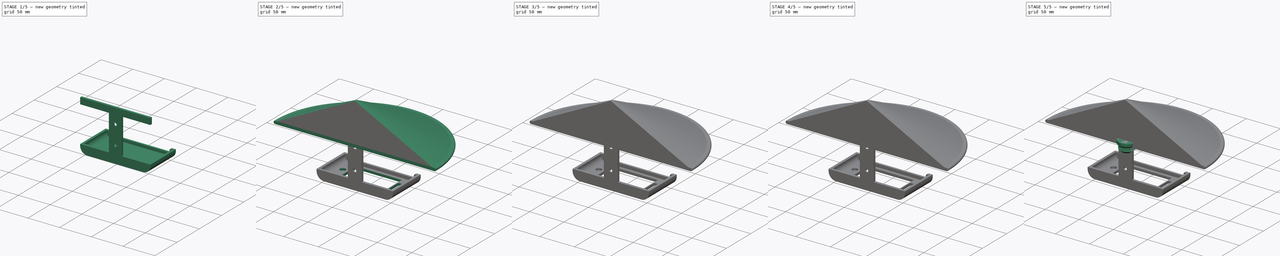
[diagram: build sequence overview — one tinted view per stage of 5, left to right]
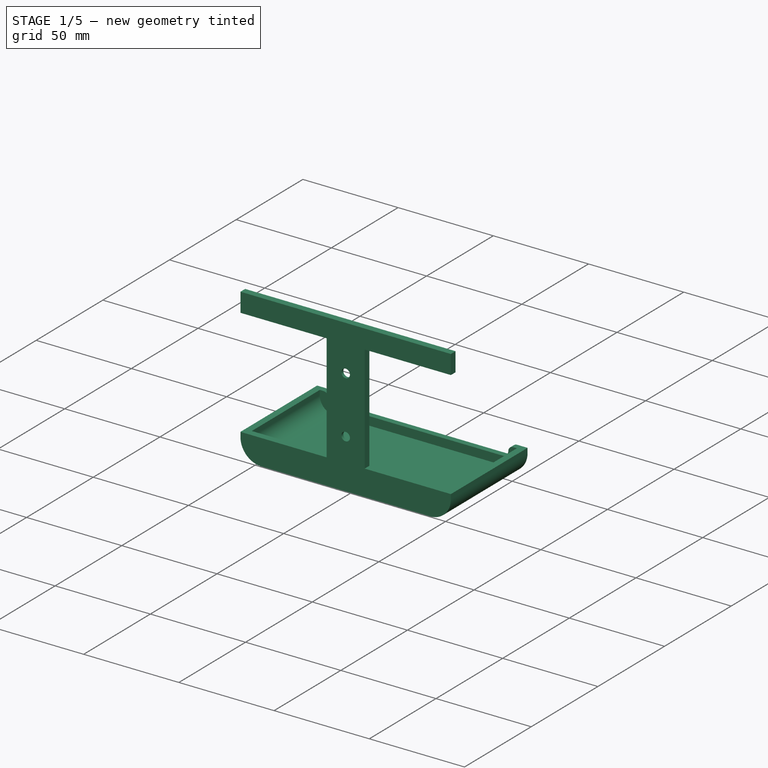
[diagram: stage 1 of 5 — iso view after this stage's code; geometry added in this stage tinted green]
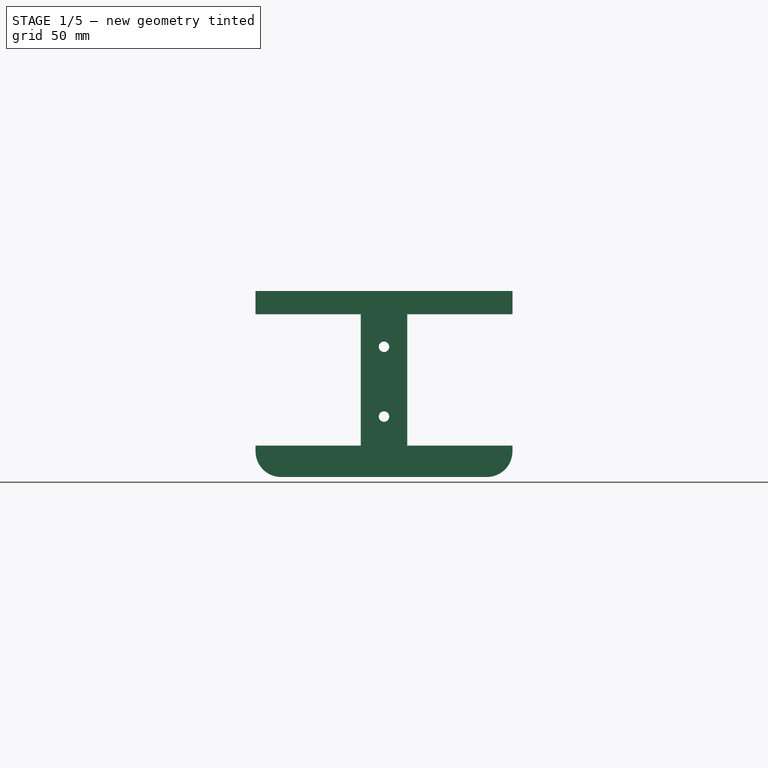
[diagram: stage 1 of 5 — front view after this stage's code; geometry added in this stage tinted green]
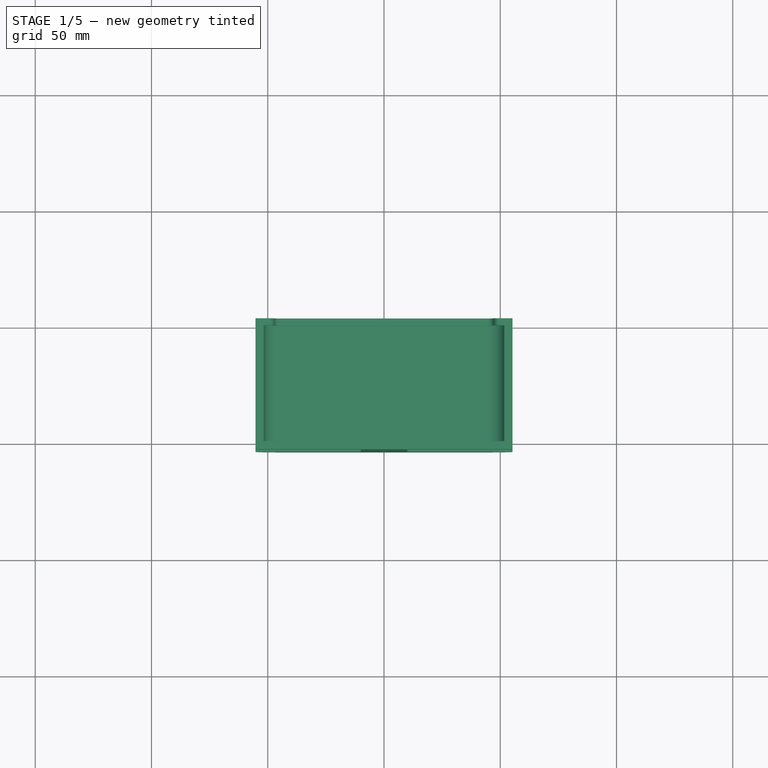
[diagram: stage 1 of 5 — top view after this stage's code; geometry added in this stage tinted green]
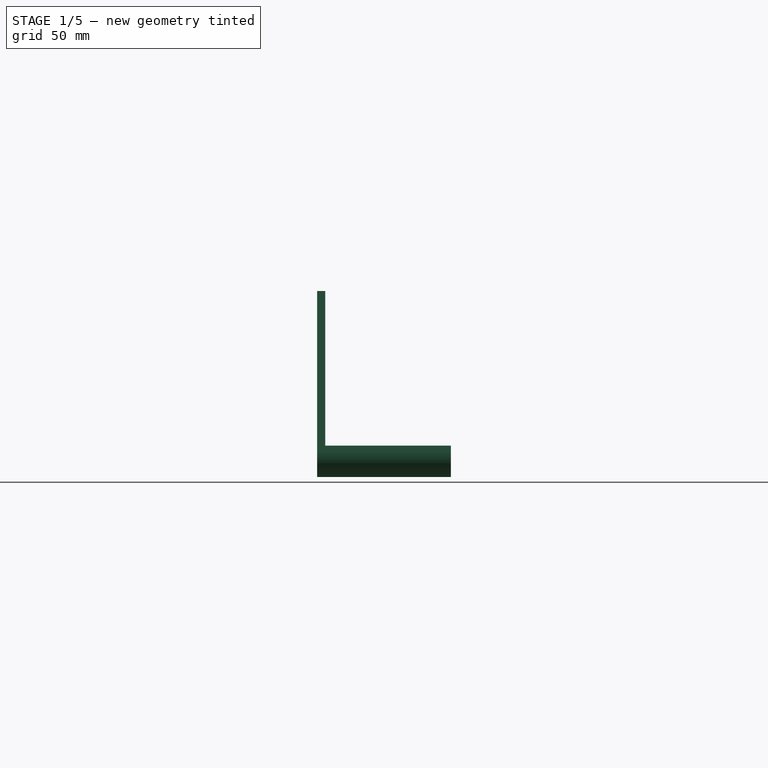
[diagram: stage 1 of 5 — right view after this stage's code; geometry added in this stage tinted green]
FCSTD DOCUMENT  (FreeCAD 1.1RUnknown)
Label: Weather_Protection_Hood
License: All rights reserved
LicenseURL: https://en.wikipedia.org/wiki/All_rights_reserved
objects: Sketcher::SketchObject×13, PartDesign::Pad×10, App::Point×4, PartDesign::Body×4, PartDesign::Fillet×4, PartDesign::Revolution×2, PartDesign::Pocket×2, PartDesign::Chamfer×2, PartDesign::Hole×1, PartDesign::Boolean×1
note: 95 computed .brp shape members not serialized (recipe doc carries the construction recipe); baked Part::Feature solids carry a one-line shape summary decoded from their .brp

FEATURE [PartDesign::Body] Body013  label="Hat"
  AllowCompound = false
  Group = -> [Sketch072,Pad054,Revolution003,Sketch073,Pad055,Sketch074,Pocket034,Chamfer006,Sketch079,Pad058,Fillet032,Sketch080,Pad059,Fillet033,Fillet034,Sketch081,Pad060,Fillet035]
  Origin = -> Origin013
  Tip = -> Fillet035
FEATURE [App::Point] Origin023
  Role = Origin
FEATURE [Sketcher::SketchObject] Sketch067
  ArcFitTolerance = 1e-06
  AttachmentSupport = -> [XZ_Plane012]
  ExternalTypes = [0]
  FullyConstrained = true
  MakeInternals = false
  MapMode = 5
  Placement = pos=(0,0,0) rot=(1,0,0;1.5708rad)
  _ExternalGeoVersion = 0
  sketch-geometry (16):
    g0: LineSegment StartX=55.25 StartY=24 StartZ=0 EndX=-55.25 EndY=24 EndZ=0
    g1: LineSegment StartX=-55.25 StartY=24 StartZ=0 EndX=-55.25 EndY=14 EndZ=0
    g2: LineSegment StartX=-55.25 StartY=14 StartZ=0 EndX=-10 EndY=14 EndZ=0
    g3: LineSegment StartX=-10 StartY=14 StartZ=0 EndX=-10 EndY=-42.5 EndZ=0
    g4: LineSegment StartX=-10 StartY=-42.5 StartZ=0 EndX=-55.25 EndY=-42.5 EndZ=0
    g5: LineSegment StartX=-55.25 StartY=-42.5 StartZ=0 EndX=-55.25 EndY=-45 EndZ=0
    g6: LineSegment StartX=55.25 StartY=24 StartZ=0 EndX=55.25 EndY=14 EndZ=0
    g7: LineSegment StartX=55.25 StartY=14 StartZ=0 EndX=10 EndY=14 EndZ=0
    g8: LineSegment StartX=10 StartY=14 StartZ=0 EndX=10 EndY=-42.5 EndZ=0
    g9: LineSegment StartX=10 StartY=-42.5 StartZ=0 EndX=55.25 EndY=-42.5 EndZ=0
    g10: LineSegment StartX=55.25 StartY=-42.5 StartZ=0 EndX=55.25 EndY=-45 EndZ=0
    g11: ArcOfCircle CenterX=44.25 CenterY=-45 CenterZ=0 NormalX=0 NormalY=0 NormalZ=1 AngleXU=0 Radius=11 StartAngle=4.71239 EndAngle=6.28319
    g12: ArcOfCircle CenterX=-44.25 CenterY=-45 CenterZ=0 NormalX=0 NormalY=0 NormalZ=1 AngleXU=0 Radius=11 StartAngle=3.14159 EndAngle=4.71239
    g13: LineSegment StartX=44.25 StartY=-56 StartZ=0 EndX=-44.25 EndY=-56 EndZ=0
    g14: Circle CenterX=0 CenterY=0 CenterZ=0 NormalX=0 NormalY=0 NormalZ=1 AngleXU=0 Radius=2.25
    g15: Circle CenterX=0 CenterY=-30 CenterZ=0 NormalX=0 NormalY=0 NormalZ=1 AngleXU=0 Radius=2.25
  constraints (47):
    c: Horizontal(g0)
    c: Coincident(g0,g1)
    c: Vertical(g1)
    c: Coincident(g1,g2)
    c: Horizontal(g2)
    c: Coincident(g2,g3)
    c: Vertical(g3)
    c: Coincident(g3,g4)
    c: Horizontal(g4)
    c: Coincident(g4,g5)
    c: Vertical(g5)
    c: Coincident(g0,g6)
    c: Vertical(g6)
    c: Coincident(g6,g7)
    c: Horizontal(g7)
    c: Coincident(g7,g8)
    c: Vertical(g8)
    c: Coincident(g8,g9)
    c: Horizontal(g9)
    c: Coincident(g9,g10)
    c: Vertical(g10)
    c: Coincident(g11,g10)
    c: Coincident(g12,g5)
    c: Coincident(g13,g11)
    c: Coincident(g13,g12)
    c: Horizontal(g13)
    c: Symmetric(g7,g2,g-2)
    c: Distance(g3,g8) = 20
    c: Distance(g13,g0) = 80
    c: Horizontal(g10,g11)
    c: Horizontal(g12,g5)
    c: Vertical(g12,g12)
    c: Vertical(g11,g11)
    c: Equal(g12,g11)
    c: Distance(g-1,g13) = 56
    c: Symmetric(g9,g4,g-2)
    c: Distance(g13,g4) = 13.5
    c: DistanceY(g1,g1) = 10
    c: Vertical(g1,g4)
    c: Vertical(g6,g9)
    c: DistanceX(g0,g0) = 110.5
    c: Coincident(g14,g-1)
    c: PointOnObject(g15,g-2)
    c: Equal(g15,g14)
    c: DistanceY(g15,g-1) = 30
    c: Diameter(g14) = 4.5
    c: Radius(g12) = 11
FEATURE [PartDesign::Pad] Pad050
  Direction = (0,-1,2e-16)
  Length = 3.5
  Length2 = 10
  Placement = pos=(0,0,0) rot=(1,0,0;1.5708rad)
  Profile = -> Sketch067
  ReferenceAxis = -> Sketch067 [N_Axis]
  Refine = true
  SideType = 0
  Suppressed = false
  Type = 0
  Type2 = 0
FEATURE [Sketcher::SketchObject] Sketch068
  ArcFitTolerance = 1e-06
  AttachmentSupport = -> [Pad050]
  ExternalTypes = [0]
  FullyConstrained = true
  MakeInternals = false
  MapMode = 5
  Placement = pos=(0,-3.3e-15,0) rot=(-1,0,0;1.5708rad)
  _ExternalGeoVersion = 0
  sketch-geometry (12):
    g0: LineSegment StartX=-55.25 StartY=45 StartZ=0 EndX=-55.25 EndY=42.5 EndZ=0
    g1: LineSegment StartX=-44.25 StartY=56 StartZ=0 EndX=44.25 EndY=56 EndZ=0
    g2: LineSegment StartX=-44.25 StartY=52.5 StartZ=0 EndX=44.25 EndY=52.5 EndZ=0
    g3: LineSegment StartX=-55.25 StartY=42.5 StartZ=0 EndX=-51.75 EndY=42.5 EndZ=0
    g4: LineSegment StartX=55.25 StartY=45 StartZ=0 EndX=55.25 EndY=42.5 EndZ=0
    g5: LineSegment StartX=55.25 StartY=42.5 StartZ=0 EndX=51.75 EndY=42.5 EndZ=0
    g6: LineSegment StartX=51.75 StartY=42.5 StartZ=0 EndX=51.75 EndY=45 EndZ=0
    g7: LineSegment StartX=-51.75 StartY=42.5 StartZ=0 EndX=-51.75 EndY=45 EndZ=0
    g8: ArcOfCircle CenterX=-44.25 CenterY=45 CenterZ=0 NormalX=0 NormalY=0 NormalZ=1 AngleXU=0 Radius=7.5 StartAngle=1.5708 EndAngle=3.14159
    g9: ArcOfCircle CenterX=44.25 CenterY=45 CenterZ=0 NormalX=0 NormalY=0 NormalZ=1 AngleXU=0 Radius=7.5 StartAngle=0 EndAngle=1.5708
    g10: ArcOfCircle CenterX=44.25 CenterY=45 CenterZ=0 NormalX=0 NormalY=0 NormalZ=1 AngleXU=0 Radius=11 StartAngle=0 EndAngle=1.5708
    g11: ArcOfCircle CenterX=-44.25 CenterY=45 CenterZ=0 NormalX=0 NormalY=0 NormalZ=1 AngleXU=0 Radius=11 StartAngle=1.5708 EndAngle=3.14159
  constraints (37):
    c: Vertical(g0)
    c: Horizontal(g1)
    c: Coincident(g3,g0)
    c: Horizontal(g3)
    c: Vertical(g4)
    c: Coincident(g5,g4)
    c: Horizontal(g5)
    c: Coincident(g6,g5)
    c: Vertical(g6)
    c: Coincident(g7,g3)
    c: Vertical(g7)
    c: Coincident(g8,g7)
    c: Coincident(g8,g2)
    c: Coincident(g9,g2)
    c: Coincident(g9,g6)
    c: Coincident(g10,g9)
    c: Coincident(g10,g1)
    c: Coincident(g10,g4)
    c: Coincident(g11,g8)
    c: Coincident(g11,g0)
    c: Coincident(g11,g1)
    c: Vertical(g10,g2)
    c: Vertical(g1,g9)
    c: Horizontal(g6,g9)
    c: Horizontal(g4,g9)
    c: Horizontal(g7,g8)
    c: Horizontal(g0,g8)
    c: Vertical(g8,g2)
    c: Vertical(g1,g8)
    c: Radius(g11) = 11
    c: Radius(g8) = 7.5
    c: Distance(g1,g-1) = 56
    c: Equal(g8,g9)
    c: Horizontal(g5,g3)
    c: DistanceY(g4,g4) = 2.5
    c: Distance(g6,g7) = 103.5
    c: Symmetric(g2,g2,g-2)
FEATURE [PartDesign::Pad] Pad051
  BaseFeature = -> Pad050
  Direction = (0,1,2e-16)
  Length = 51
  Length2 = 10
  Placement = pos=(0,0,0) rot=(1,0,0;1.5708rad)
  Profile = -> Sketch068
  ReferenceAxis = -> Sketch068 [N_Axis]
  Refine = true
  SideType = 0
  Suppressed = false
  Type = 0
  Type2 = 0
FEATURE [Sketcher::SketchObject] Sketch069
  ArcFitTolerance = 1e-06
  AttachmentSupport = -> [Pad051]
  ExternalTypes = [0]
  FullyConstrained = true
  MakeInternals = false
  MapMode = 5
  Placement = pos=(0,51,0) rot=(-1,0,0;1.5708rad)
  _ExternalGeoVersion = 0
  sketch-geometry (12):
    g0: LineSegment StartX=-55.25 StartY=45 StartZ=0 EndX=-55.25 EndY=42.5 EndZ=0
    g1: LineSegment StartX=-44.25 StartY=56 StartZ=0 EndX=44.25 EndY=56 EndZ=0
    g2: LineSegment StartX=-44.25 StartY=48 StartZ=0 EndX=44.25 EndY=48 EndZ=0
    g3: LineSegment StartX=-55.25 StartY=42.5 StartZ=0 EndX=-49.75 EndY=42.5 EndZ=0
    g4: LineSegment StartX=55.25 StartY=45 StartZ=0 EndX=55.25 EndY=42.5 EndZ=0
    g5: LineSegment StartX=55.25 StartY=42.5 StartZ=0 EndX=49.75 EndY=42.5 EndZ=0
    g6: ArcOfCircle CenterX=-44.25 CenterY=45 CenterZ=0 NormalX=0 NormalY=0 NormalZ=1 AngleXU=0 Radius=3 StartAngle=1.5708 EndAngle=3.14159
    g7: ArcOfCircle CenterX=44.25 CenterY=45 CenterZ=0 NormalX=0 NormalY=0 NormalZ=1 AngleXU=0 Radius=3 StartAngle=0 EndAngle=1.5708
    g8: ArcOfCircle CenterX=44.25 CenterY=45 CenterZ=0 NormalX=0 NormalY=0 NormalZ=1 AngleXU=0 Radius=11 StartAngle=0 EndAngle=1.5708
    g9: ArcOfCircle CenterX=-44.25 CenterY=45 CenterZ=0 NormalX=0 NormalY=0 NormalZ=1 AngleXU=0 Radius=11 StartAngle=1.5708 EndAngle=3.14159
    g10: ArcOfCircle CenterX=49.75 CenterY=45 CenterZ=0 NormalX=0 NormalY=0 NormalZ=1 AngleXU=0 Radius=2.5 StartAngle=3.14159 EndAngle=4.71239
    g11: ArcOfCircle CenterX=-49.75 CenterY=45 CenterZ=0 NormalX=0 NormalY=0 NormalZ=1 AngleXU=0 Radius=2.5 StartAngle=4.71239 EndAngle=6.28319
  constraints (39):
    c: Vertical(g0)
    c: Horizontal(g2)
    c: Coincident(g3,g0)
    c: Horizontal(g3)
    c: Vertical(g4)
    c: Coincident(g5,g4)
    c: Horizontal(g5)
    c: Coincident(g6,g2)
    c: Coincident(g7,g2)
    c: Coincident(g8,g7)
    c: Coincident(g8,g1)
    c: Coincident(g8,g4)
    c: Coincident(g9,g6)
    c: Coincident(g9,g0)
    c: Coincident(g9,g1)
    c: Vertical(g8,g2)
    c: Vertical(g1,g7)
    c: Horizontal(g7,g7)
    c: Horizontal(g4,g7)
    c: Horizontal(g6,g6)
    c: Horizontal(g0,g6)
    c: Vertical(g6,g2)
    c: Vertical(g1,g6)
    c: Radius(g9) = 11
    c: Radius(g6) = 3
    c: Distance(g1,g-1) = 56
    c: Equal(g6,g7)
    c: Horizontal(g5,g3)
    c: DistanceY(g4,g4) = 2.5
    c: Coincident(g10,g7)
    c: Coincident(g10,g5)
    c: Coincident(g11,g6)
    c: Coincident(g11,g3)
    c: Horizontal(g11,g6)
    c: Vertical(g11,g3)
    c: Horizontal(g7,g10)
    c: Vertical(g5,g10)
    c: Symmetric(g1,g1,g-2)
    c: Distance(g4,g0) = 110.5
FEATURE [PartDesign::Pad] Pad052
  BaseFeature = -> Pad051
  Direction = (0,1,2e-16)
  Length = 3
  Length2 = 10
  Placement = pos=(0,0,0) rot=(1,0,0;1.5708rad)
  Profile = -> Sketch069
  ReferenceAxis = -> Sketch069 [N_Axis]
  Refine = true
  SideType = 0
  Suppressed = false
  Type = 0
  Type2 = 0
FEATURE [PartDesign::Chamfer] Chamfer005
  Angle = 45
  Base = -> Pad052 [Edge22,Edge23]
  BaseFeature = -> Pad052
  ChamferType = 0
  FlipDirection = false
  Placement = pos=(0,0,0) rot=(1,0,0;1.5708rad)
  Refine = true
  Size = 2
  Size2 = 1
  SupportTransform = false
  Suppressed = false
  UseAllEdges = false
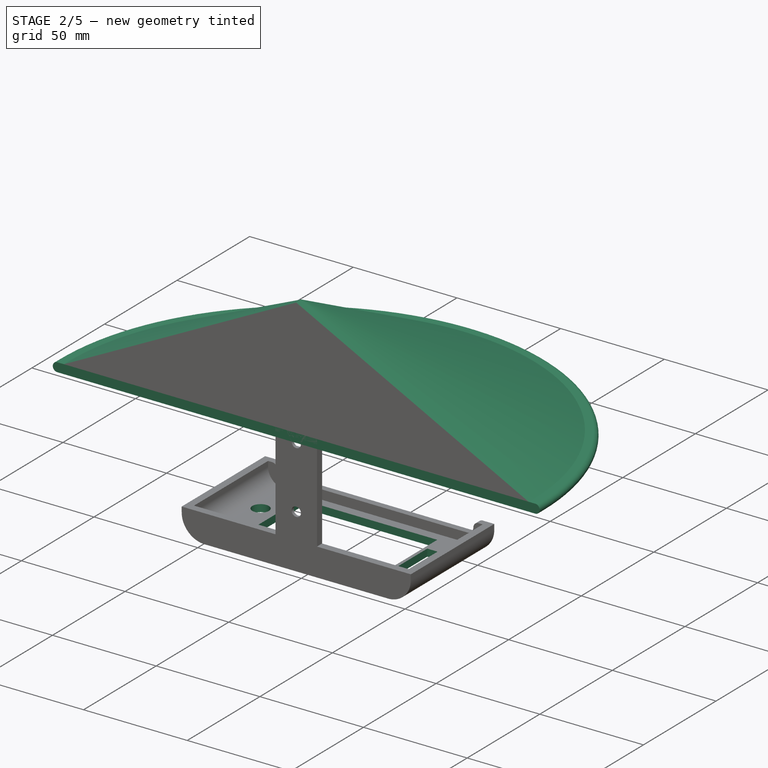
[diagram: stage 2 of 5 — iso view after this stage's code; geometry added in this stage tinted green]
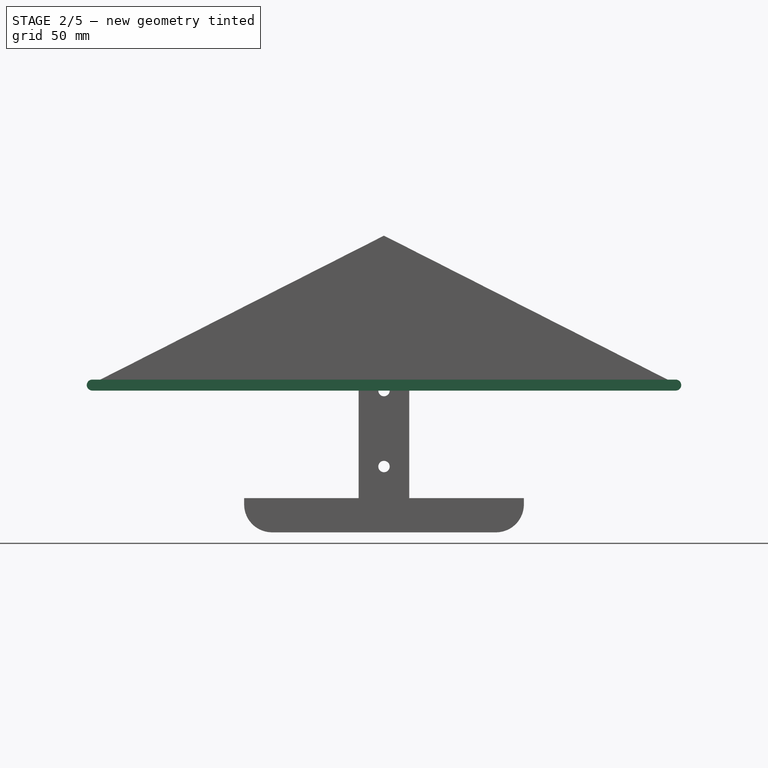
[diagram: stage 2 of 5 — front view after this stage's code; geometry added in this stage tinted green]
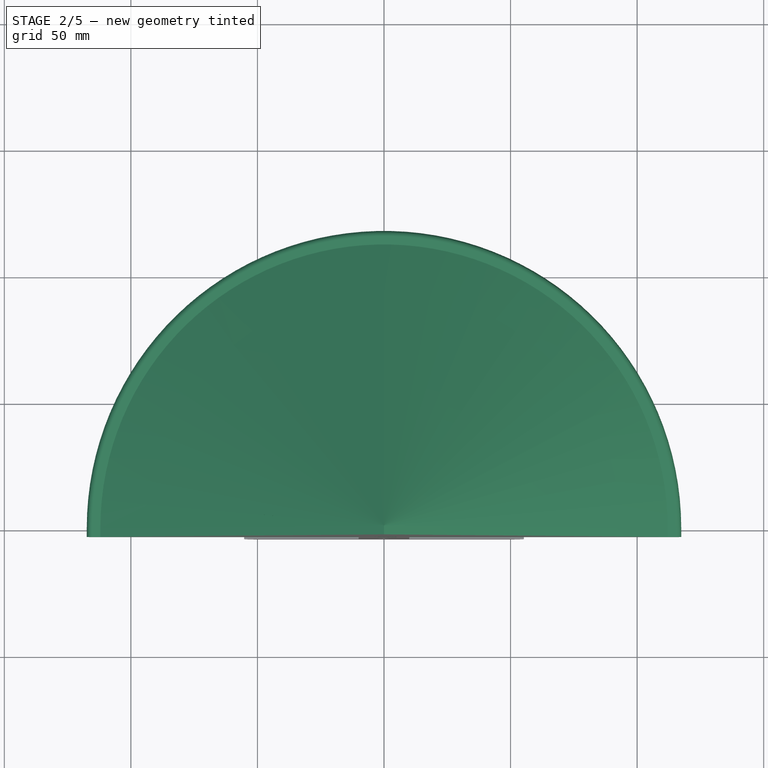
[diagram: stage 2 of 5 — top view after this stage's code; geometry added in this stage tinted green]
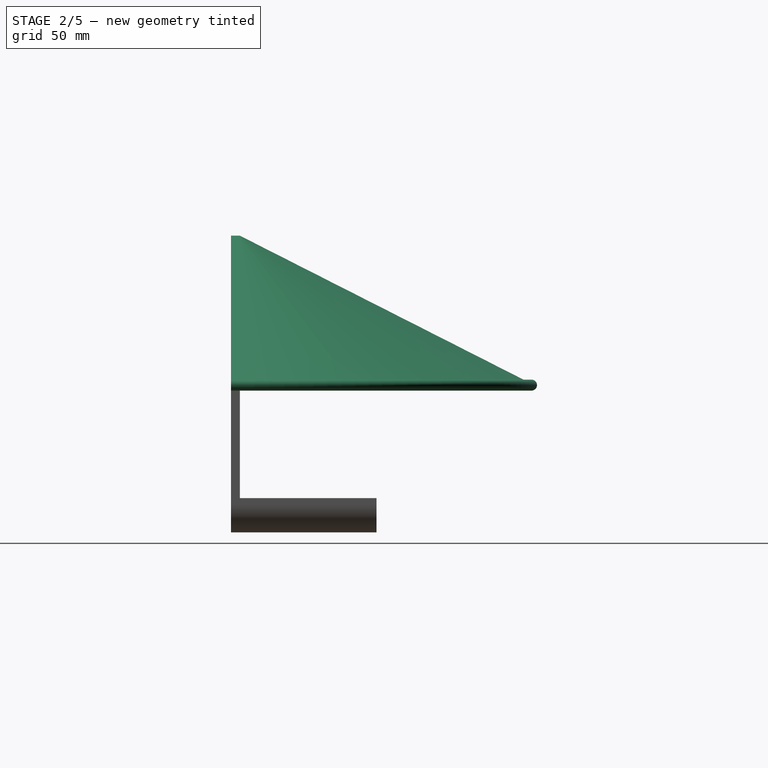
[diagram: stage 2 of 5 — right view after this stage's code; geometry added in this stage tinted green]
FEATURE [PartDesign::Body] Body  label="Bolt"
  AllowCompound = true
  Group = -> [Revolution004,Sketch075,Boolean]
  Origin = -> Origin
  Placement = pos=(0,23.5,19.4) rot=(0,0,1;0rad)
  Tip = -> Boolean
FEATURE [App::Point] Origin022
  Role = Origin
FEATURE [Sketcher::SketchObject] Sketch072
  ArcFitTolerance = 1e-06
  AttachmentSupport = -> [XZ_Plane013]
  ExternalTypes = [0]
  FullyConstrained = true
  MakeInternals = false
  MapMode = 5
  Placement = pos=(0,0,0) rot=(1,0,0;1.5708rad)
  _ExternalGeoVersion = 0
  sketch-geometry (10):
    g0: LineSegment StartX=-112.05 StartY=4.34 StartZ=0 EndX=0 EndY=61.2 EndZ=0
    g1: LineSegment StartX=0 StartY=61.2 StartZ=0 EndX=112.05 EndY=4.34 EndZ=0
    g2: ArcOfCircle CenterX=115.25 CenterY=2.17 CenterZ=0 NormalX=0 NormalY=0 NormalZ=1 AngleXU=0 Radius=2.17 StartAngle=4.71239 EndAngle=7.85398
    g3: LineSegment StartX=112.05 StartY=4.34 StartZ=0 EndX=115.25 EndY=4.34 EndZ=0
    g4: ArcOfCircle CenterX=-115.25 CenterY=2.17 CenterZ=0 NormalX=0 NormalY=0 NormalZ=1 AngleXU=0 Radius=2.17 StartAngle=1.5708 EndAngle=4.71239
    g5: LineSegment StartX=-115.25 StartY=4.34 StartZ=0 EndX=-112.05 EndY=4.34 EndZ=0
    g6: LineSegment StartX=0 StartY=57.2751 StartZ=0 EndX=-112.868 EndY=0 EndZ=0
    g7: LineSegment StartX=-115.25 StartY=0 StartZ=0 EndX=-112.868 EndY=0 EndZ=0
    g8: LineSegment StartX=-112.868 StartY=0 StartZ=0 EndX=115.25 EndY=0 EndZ=0
    g9: LineSegment StartX=0 StartY=57.2751 StartZ=0 EndX=0 EndY=61.2 EndZ=0
  constraints (30):
    c: Coincident(g0,g1)
    c: Radius(g2) = 2.17
    c: Vertical(g2,g2)
    c: Vertical(g2,g2)
    c: Coincident(g3,g1)
    c: Coincident(g3,g2)
    c: Horizontal(g3)
    c: Equal(g2,g4)
    c: Vertical(g4,g4)
    c: Vertical(g4,g4)
    c: Coincident(g5,g4)
    c: Coincident(g5,g0)
    c: Horizontal(g5)
    c: Equal(g5,g3)
    c: DistanceX(g3,g3) = 3.2
    c: DistanceX(g4,g2) = 230.5
    c: Symmetric(g2,g4,g-2)
    c: PointOnObject(g0,g-2)
    c: PointOnObject(g4,g-1)
    c: Parallel(g6,g0)
    c: Distance(g0,g6) = 3.5
    c: DistanceY(g-1,g0) = 61.2
    c: Coincident(g7,g4)
    c: Coincident(g7,g6)
    c: Coincident(g8,g6)
    c: Coincident(g8,g2)
    c: Coincident(g9,g6)
    c: Coincident(g9,g0)
    c: Horizontal(g7)
    c: Vertical(g9)
FEATURE [PartDesign::Pad] Pad054
  Direction = (0,-1,2e-16)
  Length = 3.5
  Length2 = 10
  Placement = pos=(0,0,0) rot=(1,0,0;1.5708rad)
  Profile = -> Sketch072 [Edge5,Edge2,Edge1,Edge10,Edge9,Edge8,Edge7,Edge6]
  ReferenceAxis = -> Sketch072 [N_Axis]
  Refine = true
  SideType = 0
  Suppressed = false
  Type = 0
  Type2 = 0
FEATURE [PartDesign::Revolution] Revolution003
  Angle = 180
  Angle2 = 60
  Axis = (0,2e-16,1)
  Base = (0,0,0)
  BaseFeature = -> Pad054
  FuseOrder = 1
  Placement = pos=(0,0,0) rot=(1,0,0;1.5708rad)
  Profile = -> Sketch072 [Edge3,Edge4,Edge2,Edge1,Edge10,Edge9]
  ReferenceAxis = -> Sketch072 [V_Axis]
  Refine = true
  Reversed = true
  Suppressed = false
  Type = 0
FEATURE [Sketcher::SketchObject] Sketch073
  ArcFitTolerance = 1e-06
  AttachmentSupport = -> [Revolution003]
  ExternalTypes = [0]
  FullyConstrained = true
  MakeInternals = false
  MapMode = 5
  Placement = pos=(0,3.7e-15,0) rot=(-1,0,0;1.5708rad)
  _ExternalGeoVersion = 0
  sketch-geometry (4):
    g0: LineSegment StartX=16 StartY=-23 StartZ=0 EndX=16 EndY=-20 EndZ=0
    g1: LineSegment StartX=16 StartY=-20 StartZ=0 EndX=-16 EndY=-20 EndZ=0
    g2: LineSegment StartX=-16 StartY=-20 StartZ=0 EndX=-16 EndY=-23 EndZ=0
    g3: LineSegment StartX=-16 StartY=-23 StartZ=0 EndX=16 EndY=-23 EndZ=0
  constraints (11):
    c: Coincident(g0,g1)
    c: Coincident(g1,g2)
    c: Coincident(g2,g3)
    c: Coincident(g3,g0)
    c: Vertical(g0)
    c: Vertical(g2)
    c: Horizontal(g1)
    c: Distance(g-1,g1) = 20
    c: DistanceY(g2,g2) = 3
    c: DistanceX(g3,g3) = 32
    c: Symmetric(g0,g2,g-2)
FEATURE [PartDesign::Pad] Pad055
  BaseFeature = -> Revolution003
  Direction = (0,1,2e-16)
  Length = 30
  Length2 = 10
  Placement = pos=(0,0,0) rot=(1,0,0;1.5708rad)
  Profile = -> Sketch073
  ReferenceAxis = -> Sketch073 [N_Axis]
  Refine = true
  SideType = 0
  Suppressed = false
  Type = 0
  Type2 = 0
FEATURE [Sketcher::SketchObject] Sketch070
  ArcFitTolerance = 1e-06
  AttachmentSupport = -> [Chamfer005]
  ExternalTypes = [0]
  FullyConstrained = true
  MakeInternals = false
  MapMode = 5
  Placement = pos=(0,-3e-16,-56) rot=(1,0,0;3.14159rad)
  _ExternalGeoVersion = 0
  sketch-geometry (9):
    g0: LineSegment StartX=-33 StartY=-4 StartZ=0 EndX=-33 EndY=-46.5 EndZ=0
    g1: LineSegment StartX=-33 StartY=-46.5 StartZ=0 EndX=33 EndY=-46.5 EndZ=0
    g2: LineSegment StartX=33 StartY=-46.5 StartZ=0 EndX=33 EndY=-4 EndZ=0
    g3: LineSegment StartX=33 StartY=-4 StartZ=0 EndX=-33 EndY=-4 EndZ=0
    g4: LineSegment StartX=34.5 StartY=-12.5 StartZ=0 EndX=34.5 EndY=-37.5 EndZ=0
    g5: LineSegment StartX=34.5 StartY=-37.5 StartZ=0 EndX=44.5 EndY=-37.5 EndZ=0
    g6: LineSegment StartX=44.5 StartY=-37.5 StartZ=0 EndX=44.5 EndY=-12.5 EndZ=0
    g7: LineSegment StartX=44.5 StartY=-12.5 StartZ=0 EndX=34.5 EndY=-12.5 EndZ=0
    g8: Circle CenterX=-41 CenterY=-30.5 CenterZ=0 NormalX=0 NormalY=0 NormalZ=1 AngleXU=0 Radius=4
  constraints (26):
    c: Coincident(g0,g1)
    c: Coincident(g1,g2)
    c: Coincident(g2,g3)
    c: Coincident(g3,g0)
    c: Vertical(g0)
    c: Vertical(g2)
    c: Horizontal(g3)
    c: Coincident(g4,g5)
    c: Coincident(g5,g6)
    c: Coincident(g6,g7)
    c: Coincident(g7,g4)
    c: Vertical(g4)
    c: Vertical(g6)
    c: Horizontal(g5)
    c: Horizontal(g7)
    c: DistanceY(g0,g0) = 42.5
    c: DistanceX(g3,g3) = 66
    c: Symmetric(g0,g1,g-2)
    c: DistanceY(g6,g6) = 25
    c: DistanceX(g7,g7) = 10
    c: Distance(g-1,g3) = 4
    c: Distance(g-1,g7) = 12.5
    c: DistanceY(g8,g-1) = 30.5
    c: Distance(g8,g-2) = 41
    c: Diameter(g8) = 8
    c: Distance(g-2,g4) = 34.5
FEATURE [PartDesign::Pocket] Pocket033
  BaseFeature = -> Chamfer005
  Direction = (0,0,1)
  Length = 5
  Length2 = 5
  Placement = pos=(0,0,0) rot=(1,0,0;1.5708rad)
  Profile = -> Sketch070
  ReferenceAxis = -> Sketch070 [N_Axis]
  Refine = true
  SideType = 0
  Suppressed = false
  Type = 1
  Type2 = 0
FEATURE [Sketcher::SketchObject] Sketch071
  ArcFitTolerance = 1e-06
  AttachmentSupport = -> [Pad051]
  ExternalTypes = [0]
  FullyConstrained = true
  MakeInternals = false
  MapMode = 5
  Placement = pos=(0,-3.3e-15,0) rot=(-1,0,0;1.5708rad)
  _ExternalGeoVersion = 0
  sketch-geometry (8):
    g0: LineSegment StartX=-55.25 StartY=-14 StartZ=0 EndX=-55.25 EndY=-24 EndZ=0
    g1: LineSegment StartX=-55.25 StartY=-24 StartZ=0 EndX=-51.75 EndY=-24 EndZ=0
    g2: LineSegment StartX=-51.75 StartY=-24 StartZ=0 EndX=-51.75 EndY=-14 EndZ=0
    g3: LineSegment StartX=-51.75 StartY=-14 StartZ=0 EndX=-55.25 EndY=-14 EndZ=0
    g4: LineSegment StartX=51.75 StartY=-14 StartZ=0 EndX=51.75 EndY=-24 EndZ=0
    g5: LineSegment StartX=51.75 StartY=-24 StartZ=0 EndX=55.25 EndY=-24 EndZ=0
    g6: LineSegment StartX=55.25 StartY=-24 StartZ=0 EndX=55.25 EndY=-14 EndZ=0
    g7: LineSegment StartX=55.25 StartY=-14 StartZ=0 EndX=51.75 EndY=-14 EndZ=0
  constraints (23):
    c: Coincident(g0,g1)
    c: Coincident(g1,g2)
    c: Coincident(g2,g3)
    c: Coincident(g3,g0)
    c: Vertical(g0)
    c: Vertical(g2)
    c: Horizontal(g1)
    c: Horizontal(g3)
    c: Distance(g0,g2) = 3.5
    c: Distance(g1,g3) = 10
    c: Coincident(g4,g5)
    c: Coincident(g5,g6)
    c: Coincident(g6,g7)
    c: Coincident(g7,g4)
    c: Vertical(g4)
    c: Vertical(g6)
    c: Horizontal(g5)
    c: Horizontal(g7)
    c: Equal(g4,g0)
    c: Equal(g3,g7)
    c: Symmetric(g2,g4,g-2)
    c: Distance(g4,g2) = 103.5
    c: Distance(g-1,g7) = 14
FEATURE [PartDesign::Pad] Pad053
  BaseFeature = -> Pocket033
  Direction = (0,1,2e-16)
  Length = 8
  Length2 = 10
  Placement = pos=(0,0,0) rot=(1,0,0;1.5708rad)
  Profile = -> Sketch071
  ReferenceAxis = -> Sketch071 [N_Axis]
  Refine = true
  SideType = 0
  Suppressed = false
  Type = 0
  Type2 = 0
FEATURE [PartDesign::Body] Body012  label="Wall_Mount"
  AllowCompound = false
  Group = -> [Sketch067,Pad050,Sketch068,Pad051,Sketch069,Pad052,Chamfer005,Sketch070,Pocket033,Sketch071,Pad053]
  Origin = -> Origin012
  Placement = pos=(0,-25,-32.9) rot=(0,0,1;0rad)
  Tip = -> Pad053
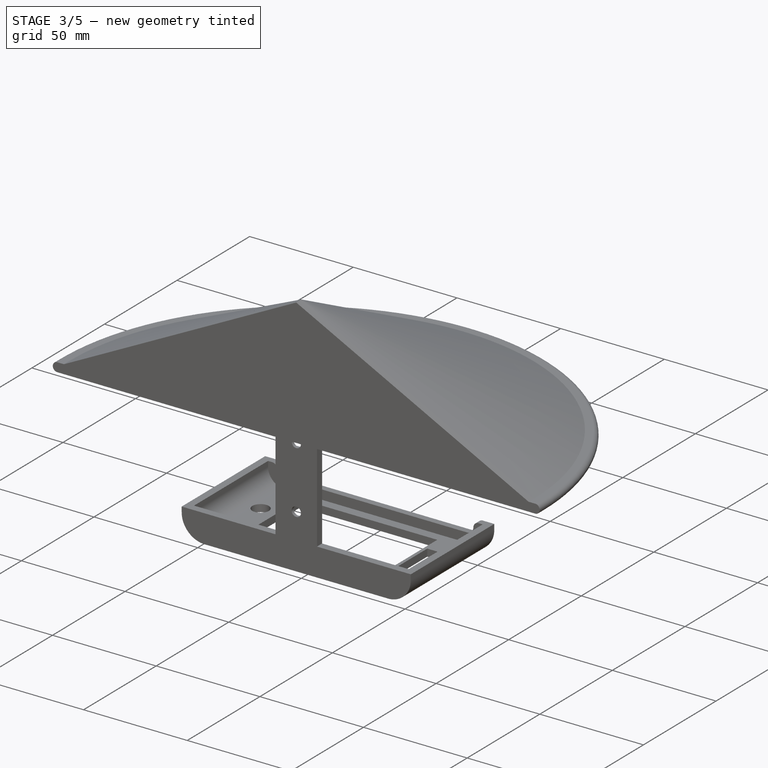
[diagram: stage 3 of 5 — iso view after this stage's code; geometry added in this stage tinted green]
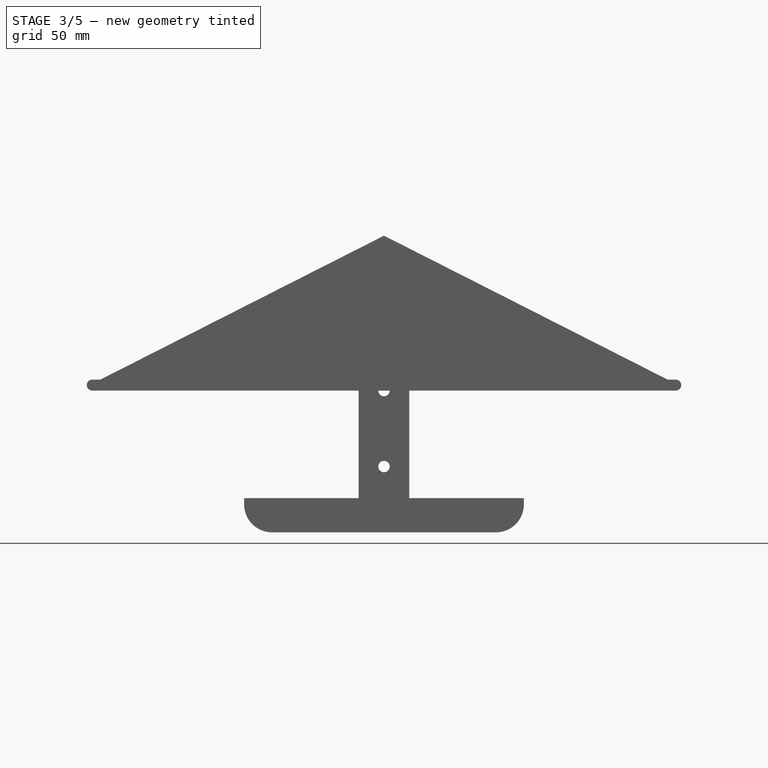
[diagram: stage 3 of 5 — front view after this stage's code; geometry added in this stage tinted green]
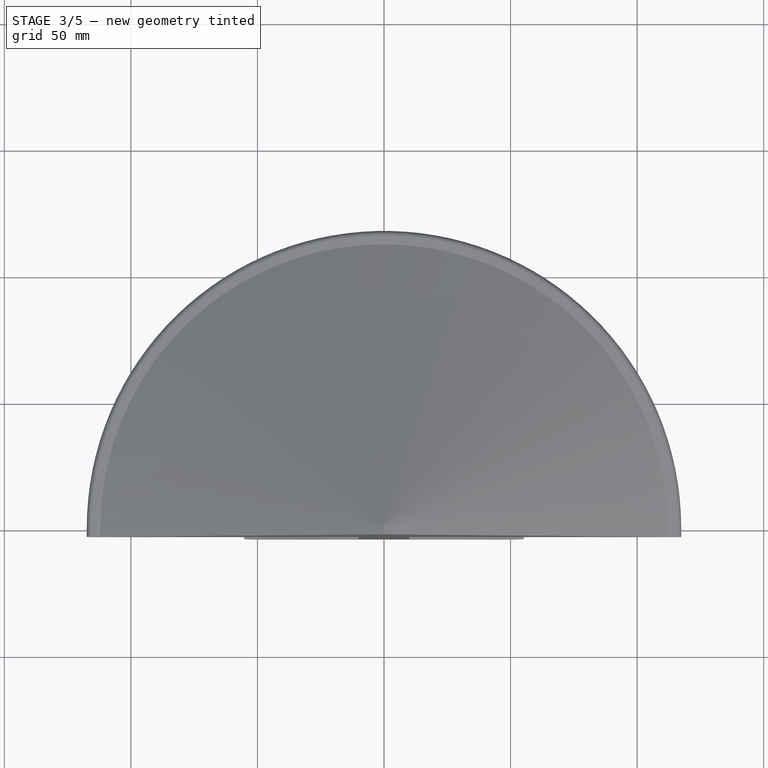
[diagram: stage 3 of 5 — top view after this stage's code; geometry added in this stage tinted green]
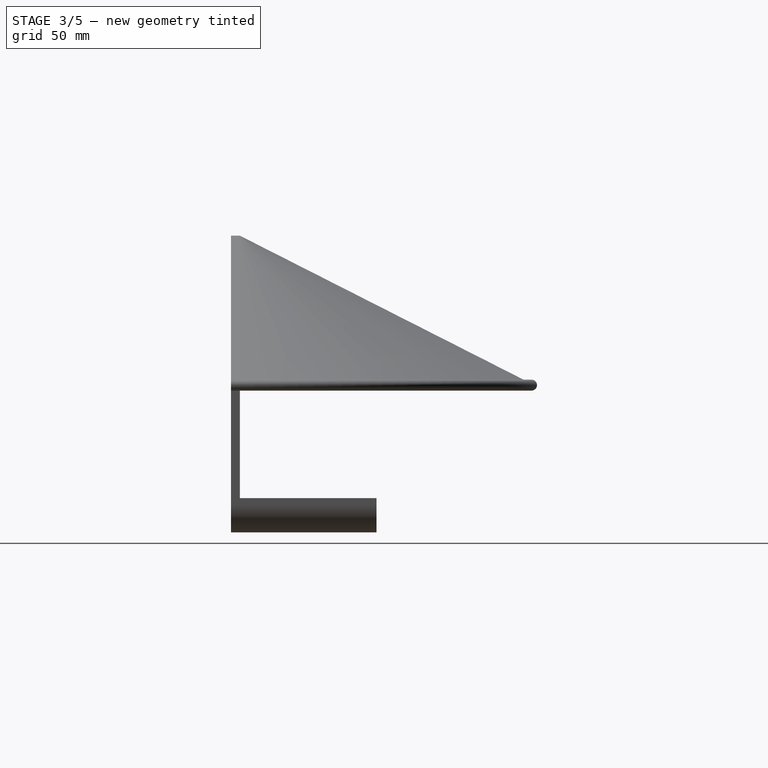
[diagram: stage 3 of 5 — right view after this stage's code; geometry added in this stage tinted green]
FEATURE [Sketcher::SketchObject] Sketch074
  ArcFitTolerance = 1e-06
  AttachmentSupport = -> [Pad055]
  ExternalTypes = [0]
  FullyConstrained = true
  MakeInternals = false
  MapMode = 5
  Placement = pos=(0,-4.4e-15,20) rot=(1,0,0;3.14159rad)
  _ExternalGeoVersion = 0
  sketch-geometry (16):
    g0: LineSegment StartX=-10 StartY=-28.7016 StartZ=0 EndX=-10 EndY=-30 EndZ=0
    g1: LineSegment StartX=10 StartY=-28.7016 StartZ=0 EndX=10 EndY=-30 EndZ=0
    g2: LineSegment StartX=10 StartY=-30 StartZ=0 EndX=-10 EndY=-30 EndZ=0
    g3: ArcOfCircle CenterX=0 CenterY=-25.5 CenterZ=0 NormalX=0 NormalY=0 NormalZ=1 AngleXU=0 Radius=10.5 StartAngle=2.45738 EndAngle=3.45144
    g4: ArcOfCircle CenterX=0 CenterY=-25.5 CenterZ=0 NormalX=0 NormalY=0 NormalZ=1 AngleXU=0 Radius=10.5 StartAngle=0.874979 EndAngle=2.26661
    g5: ArcOfCircle CenterX=0 CenterY=-25.5 CenterZ=0 NormalX=0 NormalY=0 NormalZ=1 AngleXU=0 Radius=10.5 StartAngle=5.97334 EndAngle=6.9674
    g6: LineSegment StartX=-8.13664 StartY=-18.8634 StartZ=0 EndX=-13 EndY=-14 EndZ=0
    g7: LineSegment StartX=-13 StartY=-14 StartZ=0 EndX=-13 EndY=0 EndZ=0
    g8: LineSegment StartX=-13 StartY=0 StartZ=0 EndX=-11 EndY=0 EndZ=0
    g9: LineSegment StartX=-11 StartY=0 StartZ=0 EndX=-11 EndY=-13.1716 EndZ=0
    g10: LineSegment StartX=-11 StartY=-13.1716 StartZ=0 EndX=-6.73064 EndY=-17.4409 EndZ=0
    g11: LineSegment StartX=6.73064 StartY=-17.4409 StartZ=0 EndX=11 EndY=-13.1716 EndZ=0
    g12: LineSegment StartX=11 StartY=-13.1716 StartZ=0 EndX=11 EndY=0 EndZ=0
    g13: LineSegment StartX=11 StartY=0 StartZ=0 EndX=13 EndY=0 EndZ=0
    g14: LineSegment StartX=13 StartY=0 StartZ=0 EndX=13 EndY=-14 EndZ=0
    g15: LineSegment StartX=13 StartY=-14 StartZ=0 EndX=8.13664 EndY=-18.8634 EndZ=0
  constraints (47):
    c: Symmetric(g1,g0,g-2)
    c: DistanceX(g0,g1) = 20
    c: Vertical(g0)
    c: Vertical(g1)
    c: Coincident(g2,g1)
    c: Coincident(g2,g0)
    c: Horizontal(g2)
    c: Distance(g-1,g2) = 30
    c: DistanceY(g3,g-1) = 25.5
    c: Radius(g4) = 10.5
    c: Coincident(g3,g4)
    c: Coincident(g5,g3)
    c: PointOnObject(g3,g-2)
    c: Equal(g3,g4)
    c: Coincident(g1,g5)
    c: Coincident(g3,g0)
    c: Coincident(g3,g6)
    c: Coincident(g6,g7)
    c: Vertical(g7)
    c: Coincident(g7,g8)
    c: Horizontal(g8)
    c: Coincident(g8,g9)
    c: Vertical(g9)
    c: Coincident(g9,g10)
    c: Coincident(g10,g4)
    c: Parallel(g6,g10)
    c: Coincident(g11,g4)
    c: Coincident(g11,g12)
    c: Vertical(g12)
    c: Coincident(g12,g13)
    c: Horizontal(g13)
    c: Coincident(g13,g14)
    c: Vertical(g14)
    c: Coincident(g14,g15)
    c: Coincident(g15,g5)
    c: Symmetric(g7,g13,g-1)
    c: PointOnObject(g13,g-1)
    c: Equal(g8,g13)
    c: DistanceX(g8,g8) = 2
    c: Angle(g6,g7) = 2.35619
    c: Equal(g7,g14)
    c: Perpendicular(g15,g6)
    c: Parallel(g11,g15)
    c: Equal(g12,g9)
    c: Distance(g10,g6) = 2
    c: Distance(g14,g7) = 26
    c: DistanceY(g14,g14) = 14
FEATURE [PartDesign::Pocket] Pocket034
  BaseFeature = -> Pad055
  Direction = (0,0,1)
  Length = 5
  Length2 = 5
  Placement = pos=(0,0,0) rot=(1,0,0;1.5708rad)
  Profile = -> Sketch074
  ReferenceAxis = -> Sketch074 [N_Axis]
  Refine = true
  SideType = 0
  Suppressed = false
  Type = 2
  Type2 = 0
FEATURE [PartDesign::Chamfer] Chamfer006
  Angle = 45
  Base = -> Pocket034 [Edge48,Edge63,Edge81]
  BaseFeature = -> Pocket034
  ChamferType = 0
  FlipDirection = false
  Placement = pos=(0,0,0) rot=(1,0,0;1.5708rad)
  Refine = true
  Size = 2
  Size2 = 1
  SupportTransform = false
  Suppressed = false
  UseAllEdges = false
FEATURE [Sketcher::SketchObject] Sketch079
  ArcFitTolerance = 1e-06
  AttachmentSupport = -> [Chamfer006]
  ExternalTypes = [0]
  FullyConstrained = true
  MakeInternals = false
  MapMode = 5
  Placement = pos=(0,2.5e-15,0) rot=(-1,0,0;1.5708rad)
  _ExternalGeoVersion = 0
  sketch-geometry (8):
    g0: LineSegment StartX=-16 StartY=-23 StartZ=0 EndX=-16 EndY=-33 EndZ=0
    g1: LineSegment StartX=-16 StartY=-33 StartZ=0 EndX=-13 EndY=-33 EndZ=0
    g2: LineSegment StartX=-13 StartY=-33 StartZ=0 EndX=-13 EndY=-23 EndZ=0
    g3: LineSegment StartX=-13 StartY=-23 StartZ=0 EndX=-16 EndY=-23 EndZ=0
    g4: LineSegment StartX=16 StartY=-23 StartZ=0 EndX=13 EndY=-23 EndZ=0
    g5: LineSegment StartX=13 StartY=-23 StartZ=0 EndX=13 EndY=-33 EndZ=0
    g6: LineSegment StartX=13 StartY=-33 StartZ=0 EndX=16 EndY=-33 EndZ=0
    g7: LineSegment StartX=16 StartY=-33 StartZ=0 EndX=16 EndY=-23 EndZ=0
  constraints (23):
    c: Coincident(g0,g1)
    c: Coincident(g1,g2)
    c: Coincident(g2,g3)
    c: Coincident(g3,g0)
    c: Vertical(g0)
    c: Vertical(g2)
    c: Horizontal(g1)
    c: Horizontal(g3)
    c: Coincident(g4,g5)
    c: Coincident(g5,g6)
    c: Coincident(g6,g7)
    c: Coincident(g7,g4)
    c: Horizontal(g4)
    c: Horizontal(g6)
    c: Vertical(g5)
    c: Vertical(g7)
    c: Symmetric(g1,g5,g-2)
    c: Equal(g6,g1)
    c: Distance(g-1,g3) = 23
    c: DistanceY(g7,g7) = 10
    c: Equal(g5,g2)
    c: DistanceX(g6,g6) = 3
    c: Distance(g5,g2) = 26
FEATURE [PartDesign::Pad] Pad058
  BaseFeature = -> Chamfer006
  Direction = (0,1,2e-16)
  Length = 30
  Length2 = 10
  Placement = pos=(0,0,0) rot=(1,0,0;1.5708rad)
  Profile = -> Sketch079
  ReferenceAxis = -> Sketch079 [N_Axis]
  Refine = true
  SideType = 0
  Suppressed = false
  Type = 0
  Type2 = 0
FEATURE [PartDesign::Fillet] Fillet032
  Base = -> Pad058 [Edge47,Edge56]
  BaseFeature = -> Pad058
  Placement = pos=(0,0,0) rot=(1,0,0;1.5708rad)
  Radius = 9
  Refine = true
  SupportTransform = false
  Suppressed = false
  UseAllEdges = false
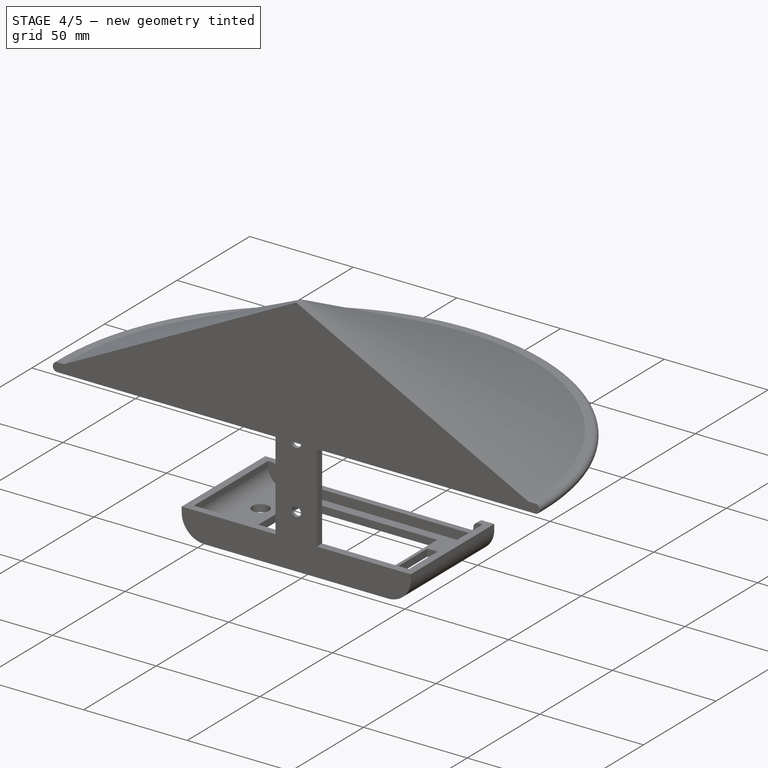
[diagram: stage 4 of 5 — iso view after this stage's code; geometry added in this stage tinted green]
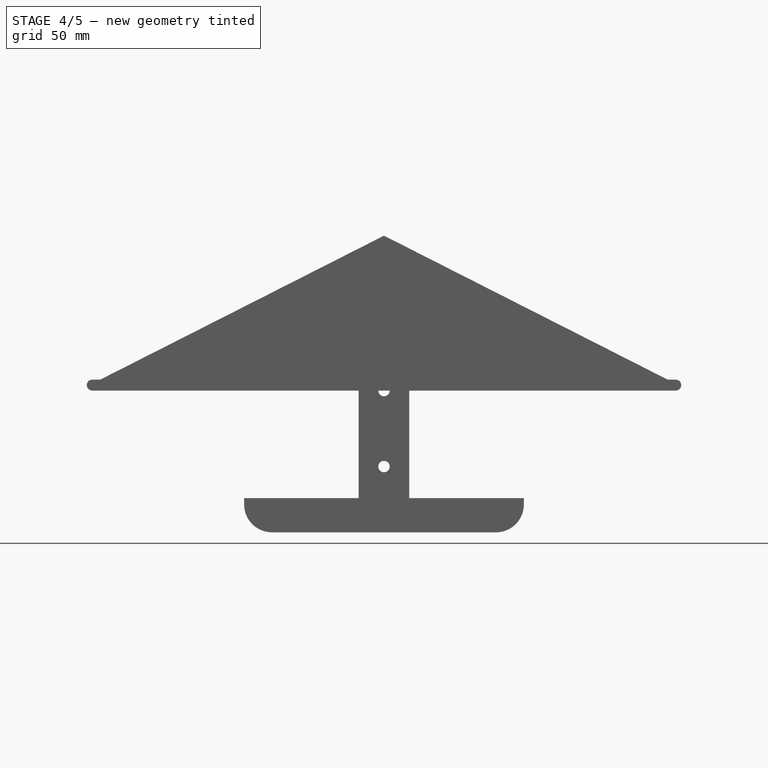
[diagram: stage 4 of 5 — front view after this stage's code; geometry added in this stage tinted green]
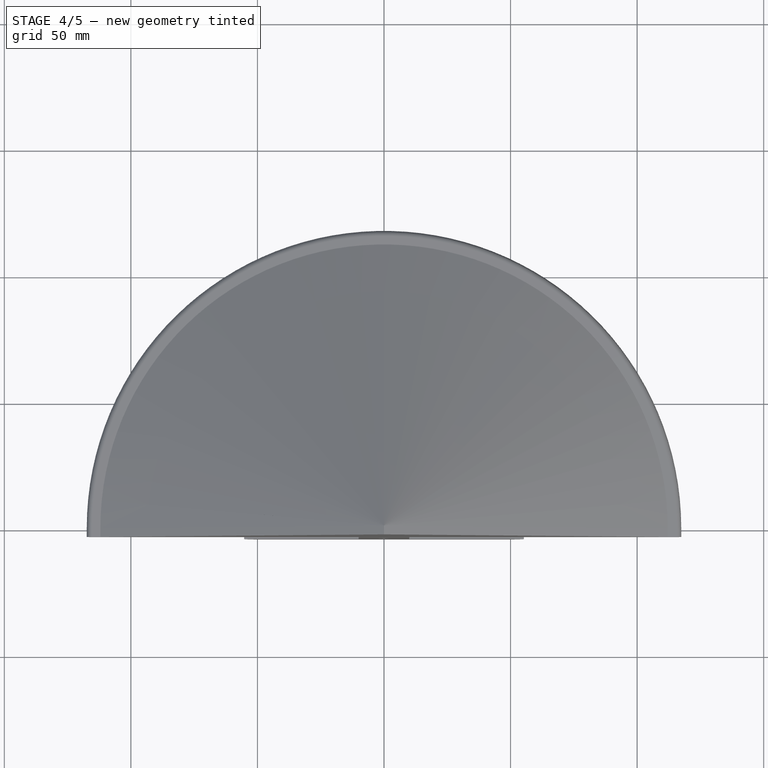
[diagram: stage 4 of 5 — top view after this stage's code; geometry added in this stage tinted green]
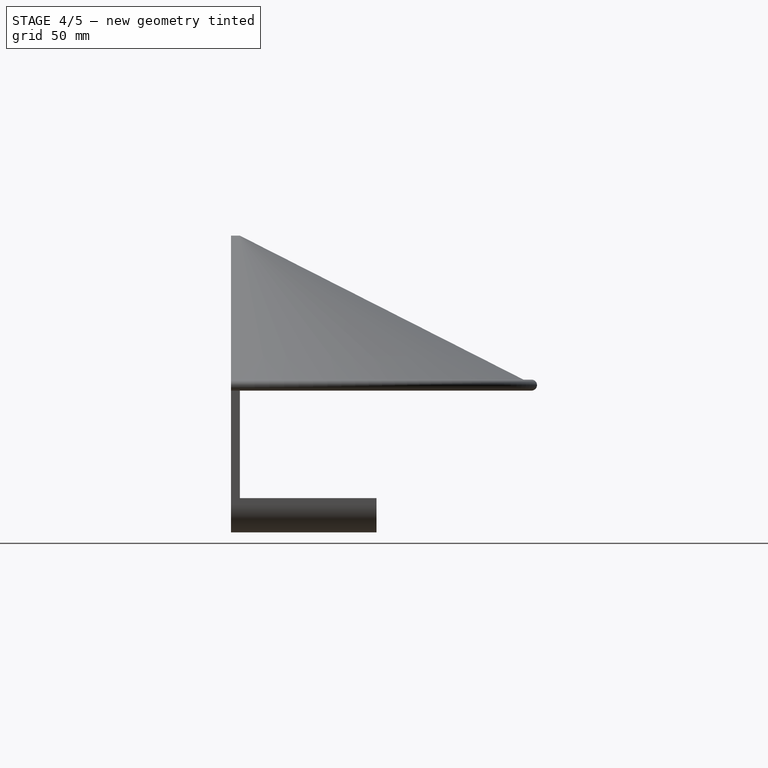
[diagram: stage 4 of 5 — right view after this stage's code; geometry added in this stage tinted green]
FEATURE [Sketcher::SketchObject] Sketch080
  ArcFitTolerance = 1e-06
  AttachmentSupport = -> [Fillet032]
  ExternalTypes = [0]
  FullyConstrained = true
  MakeInternals = false
  MapMode = 5
  Placement = pos=(0,2.5e-15,0) rot=(-1,0,0;1.5708rad)
  _ExternalGeoVersion = 0
  sketch-geometry (16):
    g0: LineSegment StartX=-54.6 StartY=0 StartZ=0 EndX=-51.6 EndY=0 EndZ=0
    g1: LineSegment StartX=-51.6 StartY=0 StartZ=0 EndX=-51.6 EndY=-16 EndZ=0
    g2: LineSegment StartX=-54.6 StartY=0 StartZ=0 EndX=-54.6 EndY=-16 EndZ=0
    g3: LineSegment StartX=-47.6 StartY=-23 StartZ=0 EndX=-44.6 EndY=-23 EndZ=0
    g4: LineSegment StartX=-44.6 StartY=-23 StartZ=0 EndX=-44.6 EndY=-20 EndZ=0
    g5: LineSegment StartX=-44.6 StartY=-20 StartZ=0 EndX=-47.6 EndY=-20 EndZ=0
    g6: ArcOfCircle CenterX=-47.6 CenterY=-16 CenterZ=0 NormalX=0 NormalY=0 NormalZ=1 AngleXU=0 Radius=7 StartAngle=3.14159 EndAngle=4.71239
    g7: ArcOfCircle CenterX=-47.6 CenterY=-16 CenterZ=0 NormalX=0 NormalY=0 NormalZ=1 AngleXU=0 Radius=4 StartAngle=3.14159 EndAngle=4.71239
    g8: LineSegment StartX=54.6 StartY=0 StartZ=0 EndX=51.6 EndY=0 EndZ=0
    g9: LineSegment StartX=51.6 StartY=0 StartZ=0 EndX=51.6 EndY=-16 EndZ=0
    g10: LineSegment StartX=54.6 StartY=0 StartZ=0 EndX=54.6 EndY=-16 EndZ=0
    g11: LineSegment StartX=47.6 StartY=-23 StartZ=0 EndX=44.6 EndY=-23 EndZ=0
    g12: LineSegment StartX=44.6 StartY=-23 StartZ=0 EndX=44.6 EndY=-20 EndZ=0
    g13: LineSegment StartX=44.6 StartY=-20 StartZ=0 EndX=47.6 EndY=-20 EndZ=0
    g14: ArcOfCircle CenterX=47.6 CenterY=-16 CenterZ=0 NormalX=0 NormalY=0 NormalZ=1 AngleXU=0 Radius=7 StartAngle=4.71239 EndAngle=6.28319
    g15: ArcOfCircle CenterX=47.6 CenterY=-16 CenterZ=0 NormalX=0 NormalY=0 NormalZ=1 AngleXU=0 Radius=4 StartAngle=4.71239 EndAngle=6.28319
  constraints (49):
    c: PointOnObject(g0,g-1)
    c: PointOnObject(g0,g-1)
    c: Coincident(g0,g1)
    c: Vertical(g1)
    c: Coincident(g0,g2)
    c: Vertical(g2)
    c: Horizontal(g3)
    c: Coincident(g3,g4)
    c: Coincident(g4,g5)
    c: Horizontal(g5)
    c: Vertical(g4)
    c: Coincident(g6,g2)
    c: Coincident(g6,g3)
    c: Coincident(g7,g6)
    c: Coincident(g7,g1)
    c: Coincident(g7,g5)
    c: PointOnObject(g8,g-1)
    c: Coincident(g8,g9)
    c: Vertical(g9)
    c: Coincident(g8,g10)
    c: Vertical(g10)
    c: Horizontal(g11)
    c: Coincident(g11,g12)
    c: Vertical(g12)
    c: Coincident(g12,g13)
    c: Horizontal(g13)
    c: Equal(g0,g8)
    c: Coincident(g14,g10)
    c: Coincident(g14,g11)
    c: Coincident(g15,g14)
    c: Coincident(g15,g9)
    c: Coincident(g15,g13)
    c: Radius(g6) = 7
    c: Horizontal(g2,g6)
    c: Vertical(g6,g3)
    c: Vertical(g5,g6)
    c: Horizontal(g1,g6)
    c: Equal(g6,g14)
    c: Distance(g0,g0) = 3
    c: Symmetric(g8,g0,g-2)
    c: Horizontal(g14,g9)
    c: Horizontal(g10,g14)
    c: Vertical(g13,g14)
    c: Vertical(g11,g14)
    c: Distance(g9,g1) = 103.2
    c: Distance(g-1,g5) = 20
    c: Horizontal(g12,g4)
    c: Equal(g13,g5)
    c: DistanceX(g3,g3) = 3
FEATURE [PartDesign::Pad] Pad059
  BaseFeature = -> Fillet032
  Direction = (0,1,2e-16)
  Length = 30
  Length2 = 10
  Placement = pos=(0,0,0) rot=(1,0,0;1.5708rad)
  Profile = -> Sketch080
  ReferenceAxis = -> Sketch080 [N_Axis]
  Refine = true
  SideType = 0
  Suppressed = false
  Type = 0
  Type2 = 0
FEATURE [PartDesign::Fillet] Fillet033
  Base = -> Pad059 [Edge76,Edge146]
  BaseFeature = -> Pad059
  Placement = pos=(0,0,0) rot=(1,0,0;1.5708rad)
  Radius = 0.8
  Refine = true
  SupportTransform = false
  Suppressed = false
  UseAllEdges = false
FEATURE [PartDesign::Fillet] Fillet034
  Base = -> Fillet033 [Edge125,Edge6]
  BaseFeature = -> Fillet033
  Placement = pos=(0,0,0) rot=(1,0,0;1.5708rad)
  Radius = 2
  Refine = true
  SupportTransform = false
  Suppressed = false
  UseAllEdges = false
FEATURE [Sketcher::SketchObject] Sketch081
  ArcFitTolerance = 1e-06
  AttachmentSupport = -> [Fillet034]
  ExternalTypes = [0]
  FullyConstrained = true
  MakeInternals = false
  MapMode = 5
  Placement = pos=(0,2.5e-15,0) rot=(-1,0,0;1.5708rad)
  _ExternalGeoVersion = 0
  sketch-geometry (8):
    g0: LineSegment StartX=-11 StartY=-23 StartZ=0 EndX=-11 EndY=-32 EndZ=0
    g1: LineSegment StartX=-11 StartY=-32 StartZ=0 EndX=-8 EndY=-32 EndZ=0
    g2: LineSegment StartX=-8 StartY=-32 StartZ=0 EndX=-8 EndY=-23 EndZ=0
    g3: LineSegment StartX=-8 StartY=-23 StartZ=0 EndX=-11 EndY=-23 EndZ=0
    g4: LineSegment StartX=8 StartY=-23 StartZ=0 EndX=8 EndY=-32 EndZ=0
    g5: LineSegment StartX=8 StartY=-32 StartZ=0 EndX=11 EndY=-32 EndZ=0
    g6: LineSegment StartX=11 StartY=-32 StartZ=0 EndX=11 EndY=-23 EndZ=0
    g7: LineSegment StartX=11 StartY=-23 StartZ=0 EndX=8 EndY=-23 EndZ=0
  constraints (23):
    c: Coincident(g0,g1)
    c: Coincident(g1,g2)
    c: Coincident(g2,g3)
    c: Coincident(g3,g0)
    c: Vertical(g0)
    c: Vertical(g2)
    c: Horizontal(g1)
    c: Horizontal(g3)
    c: Coincident(g4,g5)
    c: Coincident(g5,g6)
    c: Coincident(g6,g7)
    c: Coincident(g7,g4)
    c: Vertical(g4)
    c: Vertical(g6)
    c: Horizontal(g5)
    c: Horizontal(g7)
    c: Symmetric(g5,g0,g-2)
    c: Equal(g5,g1)
    c: Equal(g2,g4)
    c: Distance(g-1,g3) = 23
    c: DistanceX(g1,g1) = 3
    c: DistanceY(g2,g2) = 9
    c: Distance(g6,g0) = 22
FEATURE [PartDesign::Pad] Pad060
  BaseFeature = -> Fillet034
  Direction = (0,1,2e-16)
  Length = 12
  Length2 = 10
  Placement = pos=(0,0,0) rot=(1,0,0;1.5708rad)
  Profile = -> Sketch081
  ReferenceAxis = -> Sketch081 [N_Axis]
  Refine = true
  SideType = 0
  Suppressed = false
  Type = 0
  Type2 = 0
FEATURE [PartDesign::Fillet] Fillet035
  Base = -> Pad060 [Edge132,Edge118]
  BaseFeature = -> Pad060
  Placement = pos=(0,0,0) rot=(1,0,0;1.5708rad)
  Radius = 8.5
  Refine = true
  SupportTransform = false
  Suppressed = false
  UseAllEdges = false
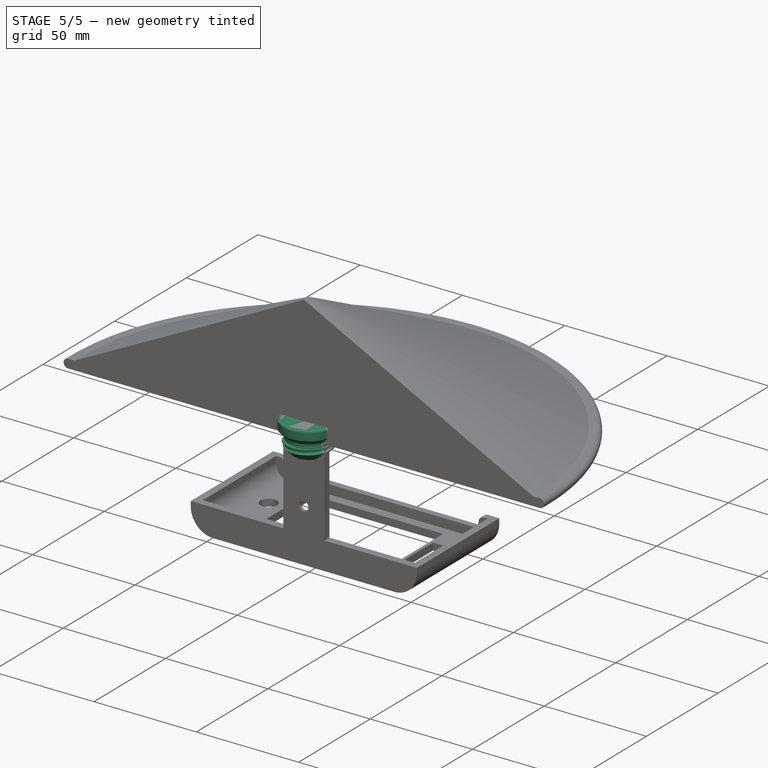
[diagram: stage 5 of 5 — iso view after this stage's code; geometry added in this stage tinted green]
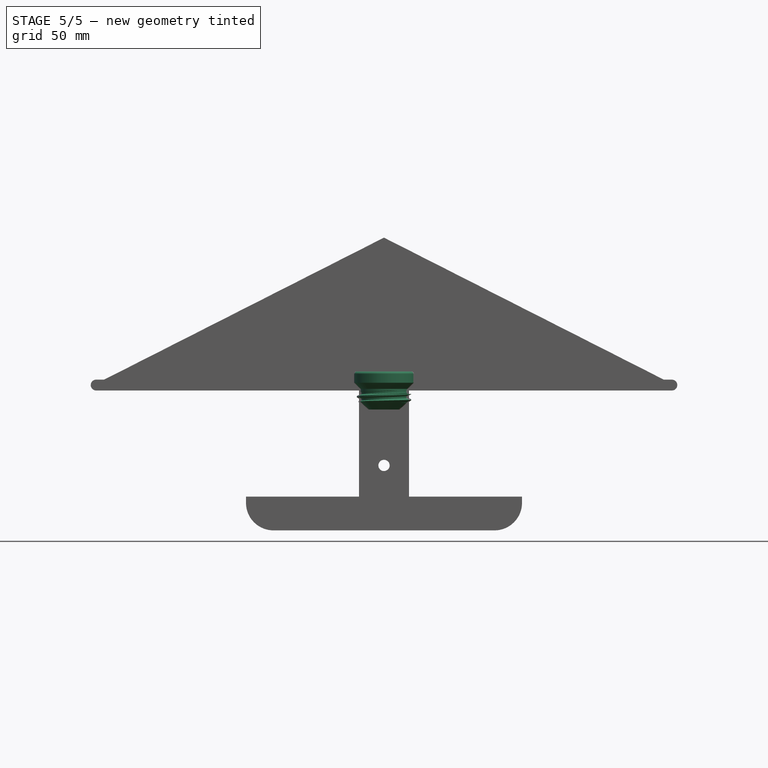
[diagram: stage 5 of 5 — front view after this stage's code; geometry added in this stage tinted green]
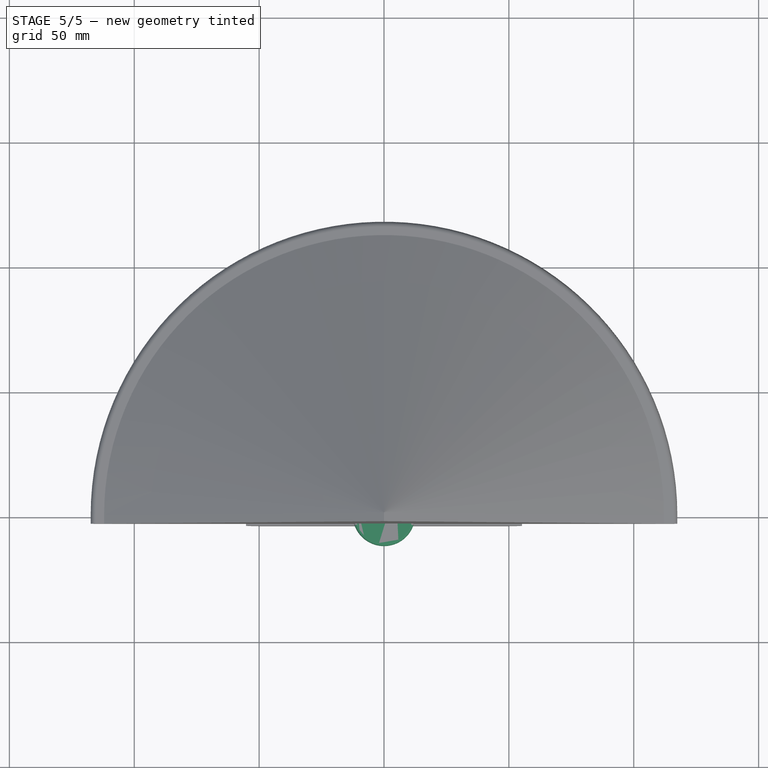
[diagram: stage 5 of 5 — top view after this stage's code; geometry added in this stage tinted green]
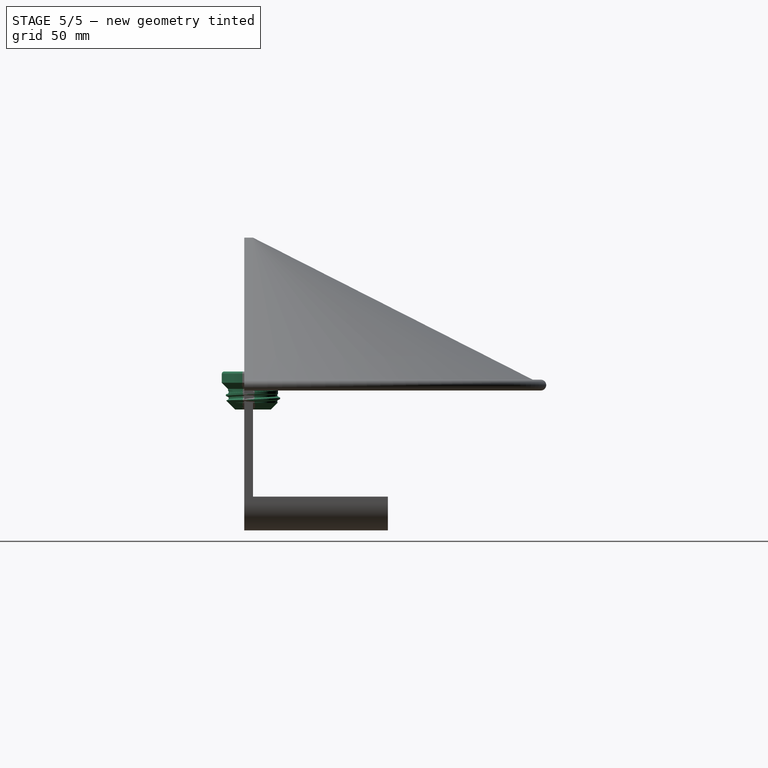
[diagram: stage 5 of 5 — right view after this stage's code; geometry added in this stage tinted green]
FEATURE [App::Point] Origin001
  Role = Origin
FEATURE [Sketcher::SketchObject] Sketch075
  ArcFitTolerance = 1e-06
  AttachmentSupport = -> [XZ_Plane014]
  ExternalTypes = [0]
  FullyConstrained = true
  MakeInternals = false
  MapMode = 5
  Placement = pos=(0,0,0) rot=(1,0,0;1.5708rad)
  _ExternalGeoVersion = 0
  sketch-geometry (10):
    g0: LineSegment StartX=0 StartY=7.625 StartZ=0 EndX=11.5 EndY=7.625 EndZ=0
    g1: ArcOfCircle CenterX=11.5 CenterY=6.625 CenterZ=0 NormalX=0 NormalY=0 NormalZ=1 AngleXU=0 Radius=1 StartAngle=0 EndAngle=1.5708
    g2: LineSegment StartX=0 StartY=7.625 StartZ=0 EndX=0 EndY=-7.625 EndZ=0
    g3: LineSegment StartX=0 StartY=-7.625 StartZ=0 EndX=7.1 EndY=-7.625 EndZ=0
    g4: LineSegment StartX=7.1 StartY=-7.625 StartZ=0 EndX=10.85 EndY=-3.875 EndZ=0
    g5: LineSegment StartX=12.5 StartY=6.625 StartZ=0 EndX=12.5 EndY=3.125 EndZ=0
    g6: LineSegment StartX=12.5 StartY=3.125 StartZ=0 EndX=10 EndY=0.625 EndZ=0
    g7: LineSegment StartX=10 StartY=0.625 StartZ=0 EndX=10 EndY=-1.375 EndZ=0
    g8: LineSegment StartX=10 StartY=-1.375 StartZ=0 EndX=10.85 EndY=-1.375 EndZ=0
    g9: LineSegment StartX=10.85 StartY=-1.375 StartZ=0 EndX=10.85 EndY=-3.875 EndZ=0
  constraints (29):
    c: Horizontal(g0)
    c: Coincident(g1,g0)
    c: Vertical(g0,g1)
    c: Horizontal(g1,g1)
    c: Radius(g1) = 1
    c: Coincident(g2,g3)
    c: Horizontal(g3)
    c: Coincident(g3,g4)
    c: Angle(g4,g3) = 2.35619
    c: Tangent(g1,g5) = 1.5708
    c: Coincident(g5,g6)
    c: Coincident(g6,g7)
    c: Vertical(g7)
    c: Coincident(g7,g8)
    c: Horizontal(g8)
    c: Coincident(g8,g9)
    c: Coincident(g9,g4)
    c: Vertical(g9)
    c: DistanceY(g7,g7) = 2
    c: DistanceX(g6,g6) = 2.5
    c: DistanceY(g9,g9) = 2.5
    c: Distance(g3,g8) = 6.25
    c: Coincident(g2,g0)
    c: Vertical(g2)
    c: Distance(g6,g0) = 7
    c: Angle(g7,g6) = 2.35619
    c: Symmetric(g0,g2,g-1)
    c: Distance(g7,g2) = 10
    c: Distance(g9,g2) = 10.85
FEATURE [PartDesign::Revolution] Revolution004
  Angle = 360
  Angle2 = 60
  Axis = (1e-16,1e-16,1)
  Base = (0,0,0)
  FuseOrder = 1
  Placement = pos=(0,0,0) rot=(1,0,0;1.5708rad)
  Profile = -> Sketch075
  ReferenceAxis = -> Z_Axis014
  Refine = true
  Reversed = true
  Suppressed = false
  Type = 0
FEATURE [App::Point] Origin003
  Role = Origin
FEATURE [Sketcher::SketchObject] Sketch
  ArcFitTolerance = 1e-06
  AttachmentSupport = -> [Origin002]
  ExternalTypes = [0]
  FullyConstrained = true
  MakeInternals = false
  MapMode = 5
  _ExternalGeoVersion = 1
  sketch-geometry (2):
    g0: Circle CenterX=0 CenterY=0 CenterZ=0 NormalX=0 NormalY=0 NormalZ=1 AngleXU=0 Radius=14
    g1: GeomPoint X=0 Y=0 Z=0
  constraints (3):
    c: Coincident(g0,g-1)
    c: Diameter(g0) = 28
    c: Coincident(g1,g0)
FEATURE [PartDesign::Pad] Pad
  Direction = (0,0,1)
  Length = 10
  Length2 = 10
  Profile = -> Sketch
  ReferenceAxis = -> Sketch [N_Axis]
  Refine = true
  Reversed = true
  SideType = 0
  Suppressed = false
  Type = 0
  Type2 = 0
FEATURE [PartDesign::Hole] Hole
  BaseFeature = -> Pad
  BaseProfileType = 7
  CustomThreadClearance = 0
  Depth = 25
  DepthType = 0
  Diameter = 19.542
  DrillForDepth = false
  DrillPoint = 1
  DrillPointAngle = 118
  HoleCutCountersinkAngle = 90
  HoleCutCustomValues = false
  HoleCutDepth = 0
  HoleCutDiameter = 0
  HoleCutType = 0
  ModelThread = true
  Profile = -> Sketch [Vertex2]
  Refine = true
  Suppressed = false
  Tapered = false
  TaperedAngle = 90
  ThreadClass = 0
  ThreadDepth = 25
  ThreadDepthType = 0
  ThreadDiameter = 22
  ThreadDirection = 0
  ThreadFit = 0
  ThreadSize = 25
  ThreadType = 1
  Threaded = true
  UseCustomThreadClearance = false
FEATURE [PartDesign::Body] Body001  label="Body"
  AllowCompound = true
  Group = -> [Sketch,Pad,Hole]
  Origin = -> Origin002
  Tip = -> Hole
FEATURE [PartDesign::Boolean] Boolean
  BaseFeature = -> Revolution004
  Group = -> [Body001]
  Refine = true
  Suppressed = false
  Type = 1
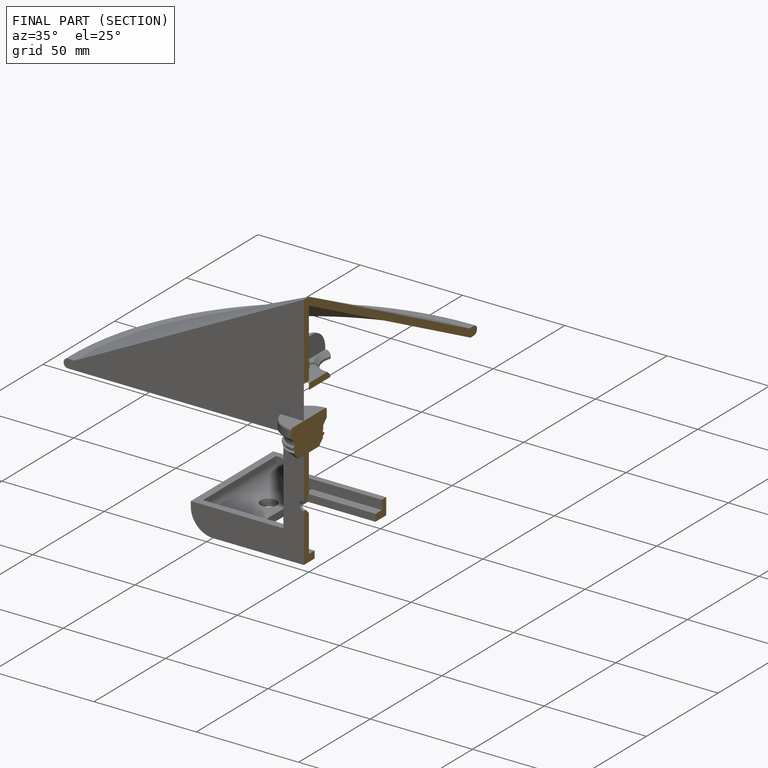
[diagram: finished part — half-section view (interior)]
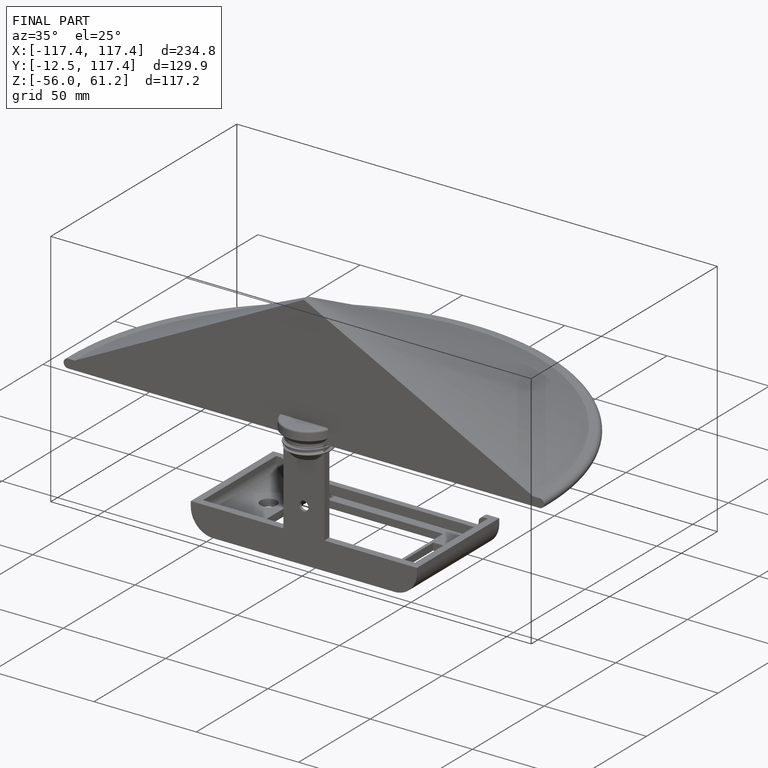
[diagram: finished part — iso view with bounding-box wireframe]
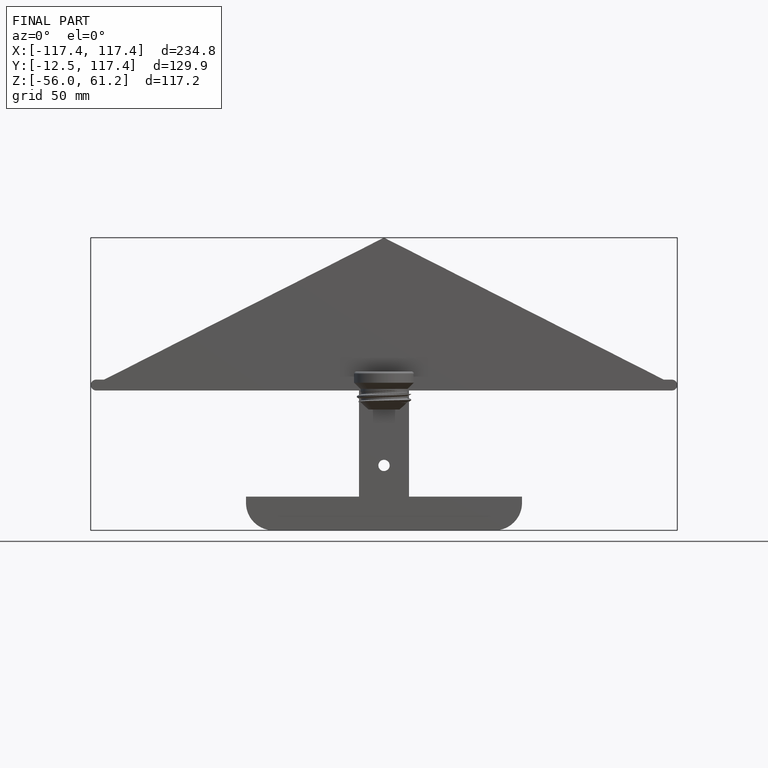
[diagram: finished part — front view with bounding-box wireframe]
